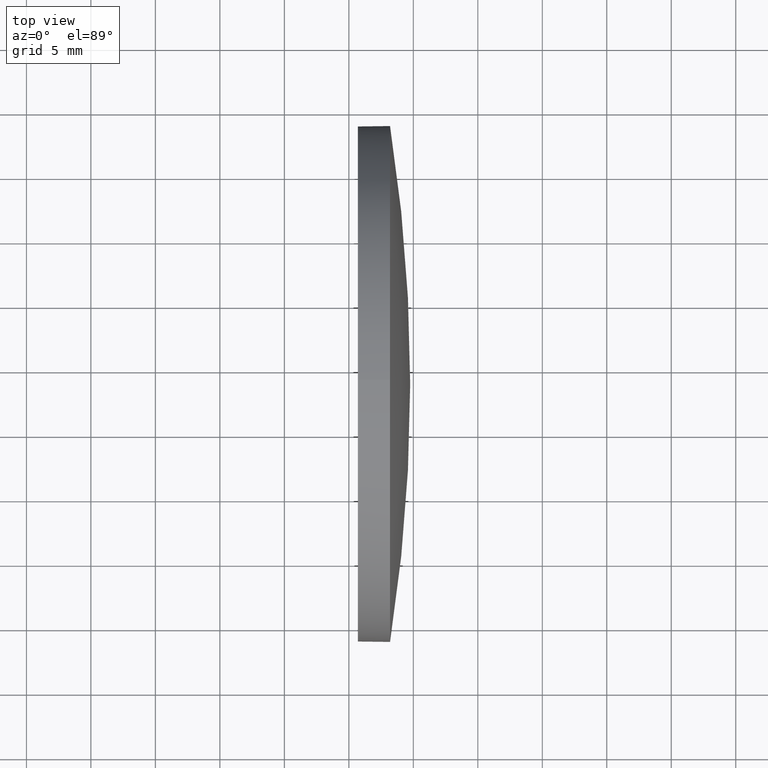
[diagram: clean part render]
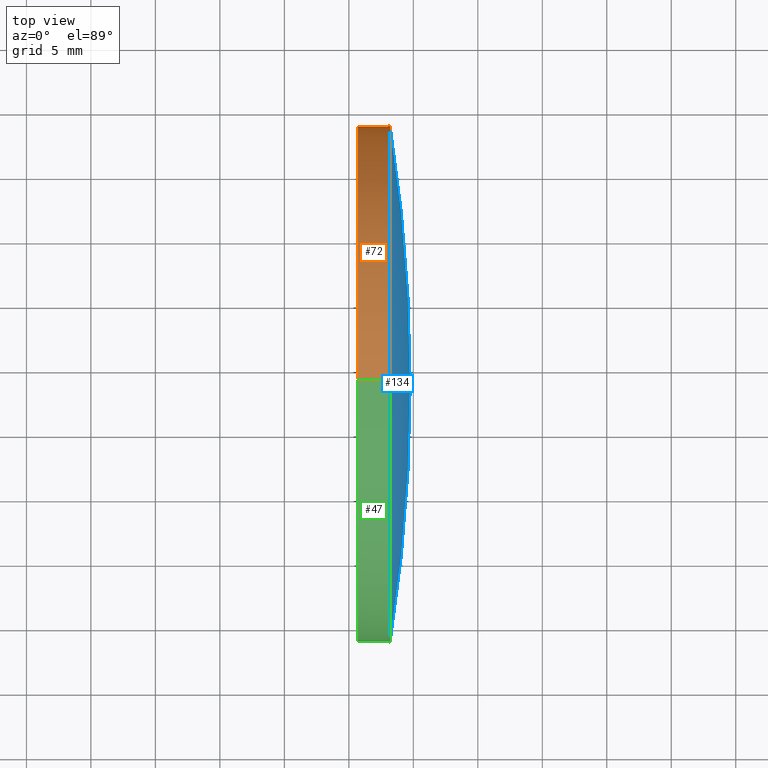
[diagram: same view with three faces highlighted in distinct colors, each labeled with its STEP entity id]
A machine part, top view with three faces highlighted in distinct colors.
Their STEP definitions:

[orange] entity #72 — the highlighted cylindrical surface (partial cylindrical patch) has radius 20 mm, axis along (-1, -0, -0).
#7 = ORIENTED_EDGE ( 'NONE', *, *, #58, .T. ) ;
#10 = CIRCLE ( 'NONE', #114, 20.00000000000000400 ) ;
#18 = FACE_OUTER_BOUND ( 'NONE', #81, .T. ) ;
#24 = DIRECTION ( 'NONE',  ( -1.000000000000000000, -0.0000000000000000000, -0.0000000000000000000 ) ) ;
#27 = CARTESIAN_POINT ( 'NONE',  ( 390.6958291310484700, 28.77305965944879100, 0.0000000000000000000 ) ) ;
#31 = ORIENTED_EDGE ( 'NONE', *, *, #168, .F. ) ;
#35 = DIRECTION ( 'NONE',  ( -1.000000000000000000, -0.0000000000000000000, -0.0000000000000000000 ) ) ;
#41 = DIRECTION ( 'NONE',  ( 0.0000000000000000000, 0.0000000000000000000, 1.000000000000000000 ) ) ;
#45 = VECTOR ( 'NONE', #35, 1000.000000000000000 ) ;
#49 = CIRCLE ( 'NONE', #86, 20.00000000000000400 ) ;
#54 = VERTEX_POINT ( 'NONE', #61 ) ;
#58 = EDGE_CURVE ( 'NONE', #162, #54, #10, .T. ) ;
#59 = VERTEX_POINT ( 'NONE', #93 ) ;
#61 = CARTESIAN_POINT ( 'NONE',  ( 393.1958291310484700, 48.77305965944879800, 0.0000000000000000000 ) ) ;
#64 = CYLINDRICAL_SURFACE ( 'NONE', #77, 20.00000000000000400 ) ;
#65 = DIRECTION ( 'NONE',  ( 0.0000000000000000000, 0.0000000000000000000, 1.000000000000000000 ) ) ;
#72 = ADVANCED_FACE ( 'NONE', ( #18 ), #64, .T. ) ;
#77 = AXIS2_PLACEMENT_3D ( 'NONE', #141, #110, #79 ) ;
#78 = CARTESIAN_POINT ( 'NONE',  ( 393.1958291310484700, 28.77305965944879100, 20.00000000000000400 ) ) ;
#79 = DIRECTION ( 'NONE',  ( 0.0000000000000000000, 0.0000000000000000000, 1.000000000000000000 ) ) ;
#81 = EDGE_LOOP ( 'NONE', ( #111, #89, #102, #31, #7 ) ) ;
#82 = DIRECTION ( 'NONE',  ( -1.000000000000000000, -0.0000000000000000000, -0.0000000000000000000 ) ) ;
#86 = AXIS2_PLACEMENT_3D ( 'NONE', #182, #180, #112 ) ;
#89 = ORIENTED_EDGE ( 'NONE', *, *, #146, .T. ) ;
#91 = VERTEX_POINT ( 'NONE', #125 ) ;
#92 = CIRCLE ( 'NONE', #185, 20.00000000000000400 ) ;
#93 = CARTESIAN_POINT ( 'NONE',  ( 390.6958291310484700, 28.77305965944879100, 20.00000000000000400 ) ) ;
#102 = ORIENTED_EDGE ( 'NONE', *, *, #183, .F. ) ;
#103 = LINE ( 'NONE', #121, #45 ) ;
#108 = CARTESIAN_POINT ( 'NONE',  ( 390.6958291310484700, 28.77305965944879400, -20.00000000000000400 ) ) ;
#109 = CARTESIAN_POINT ( 'NONE',  ( 386.7308755200624500, 28.77305965944879400, -20.00000000000000400 ) ) ;
#110 = DIRECTION ( 'NONE',  ( -1.000000000000000000, -0.0000000000000000000, -0.0000000000000000000 ) ) ;
#111 = ORIENTED_EDGE ( 'NONE', *, *, #129, .T. ) ;
#112 = DIRECTION ( 'NONE',  ( 0.0000000000000000000, 0.0000000000000000000, 1.000000000000000000 ) ) ;
#114 = AXIS2_PLACEMENT_3D ( 'NONE', #177, #82, #65 ) ;
#121 = CARTESIAN_POINT ( 'NONE',  ( 386.7308755200624500, 28.77305965944879100, 20.00000000000000400 ) ) ;
#125 = CARTESIAN_POINT ( 'NONE',  ( 393.1958291310484700, 28.77305965944879400, -20.00000000000000400 ) ) ;
#129 = EDGE_CURVE ( 'NONE', #54, #91, #49, .T. ) ;
#133 = LINE ( 'NONE', #109, #167 ) ;
#141 = CARTESIAN_POINT ( 'NONE',  ( 386.7308755200624500, 28.77305965944879100, 0.0000000000000000000 ) ) ;
#146 = EDGE_CURVE ( 'NONE', #91, #156, #133, .T. ) ;
#152 = DIRECTION ( 'NONE',  ( -1.000000000000000000, -0.0000000000000000000, -0.0000000000000000000 ) ) ;
#156 = VERTEX_POINT ( 'NONE', #108 ) ;
#162 = VERTEX_POINT ( 'NONE', #78 ) ;
#167 = VECTOR ( 'NONE', #24, 1000.000000000000000 ) ;
#168 = EDGE_CURVE ( 'NONE', #162, #59, #103, .T. ) ;
#177 = CARTESIAN_POINT ( 'NONE',  ( 393.1958291310484700, 28.77305965944879100, 0.0000000000000000000 ) ) ;
#180 = DIRECTION ( 'NONE',  ( -1.000000000000000000, -0.0000000000000000000, -0.0000000000000000000 ) ) ;
#182 = CARTESIAN_POINT ( 'NONE',  ( 393.1958291310484700, 28.77305965944879100, 0.0000000000000000000 ) ) ;
#183 = EDGE_CURVE ( 'NONE', #59, #156, #92, .T. ) ;
#185 = AXIS2_PLACEMENT_3D ( 'NONE', #27, #152, #41 ) ;

[blue] entity #134 — the highlighted spherical surface has radius 128.985 mm.
#3 = AXIS2_PLACEMENT_3D ( 'NONE', #123, #30, #113 ) ;
#5 = CARTESIAN_POINT ( 'NONE',  ( 393.1958291310484700, 28.77305965944879100, 0.0000000000000000000 ) ) ;
#6 = CARTESIAN_POINT ( 'NONE',  ( 265.7707009259203200, 28.77305965944876200, 0.0000000000000000000 ) ) ;
#10 = CIRCLE ( 'NONE', #114, 20.00000000000000400 ) ;
#13 = EDGE_CURVE ( 'NONE', #117, #54, #173, .T. ) ;
#17 = ORIENTED_EDGE ( 'NONE', *, *, #26, .F. ) ;
#19 = DIRECTION ( 'NONE',  ( 0.0000000000000000000, 0.0000000000000000000, 1.000000000000000000 ) ) ;
#22 = CARTESIAN_POINT ( 'NONE',  ( 394.7558291310484700, 28.77305965944876900, 0.0000000000000000000 ) ) ;
#25 = CARTESIAN_POINT ( 'NONE',  ( 265.7707009259203200, 28.77305965944876200, 0.0000000000000000000 ) ) ;
#26 = EDGE_CURVE ( 'NONE', #132, #162, #126, .T. ) ;
#30 = DIRECTION ( 'NONE',  ( 0.0000000000000000000, 1.224646799147353200E-016, -1.000000000000000000 ) ) ;
#44 = ORIENTED_EDGE ( 'NONE', *, *, #13, .T. ) ;
#50 = DIRECTION ( 'NONE',  ( -0.0000000000000000000, 0.0000000000000000000, 1.000000000000000000 ) ) ;
#54 = VERTEX_POINT ( 'NONE', #61 ) ;
#58 = EDGE_CURVE ( 'NONE', #162, #54, #10, .T. ) ;
#61 = CARTESIAN_POINT ( 'NONE',  ( 393.1958291310484700, 48.77305965944879800, 0.0000000000000000000 ) ) ;
#65 = DIRECTION ( 'NONE',  ( 0.0000000000000000000, 0.0000000000000000000, 1.000000000000000000 ) ) ;
#78 = CARTESIAN_POINT ( 'NONE',  ( 393.1958291310484700, 28.77305965944879100, 20.00000000000000400 ) ) ;
#82 = DIRECTION ( 'NONE',  ( -1.000000000000000000, -0.0000000000000000000, -0.0000000000000000000 ) ) ;
#87 = ORIENTED_EDGE ( 'NONE', *, *, #58, .F. ) ;
#88 = CIRCLE ( 'NONE', #3, 128.9851282051281500 ) ;
#99 = EDGE_LOOP ( 'NONE', ( #100, #44, #87, #17 ) ) ;
#100 = ORIENTED_EDGE ( 'NONE', *, *, #172, .F. ) ;
#101 = AXIS2_PLACEMENT_3D ( 'NONE', #5, #176, #19 ) ;
#113 = DIRECTION ( 'NONE',  ( 0.0000000000000000000, 1.000000000000000000, 1.224646799147353200E-016 ) ) ;
#114 = AXIS2_PLACEMENT_3D ( 'NONE', #177, #82, #65 ) ;
#117 = VERTEX_POINT ( 'NONE', #22 ) ;
#119 = DIRECTION ( 'NONE',  ( 1.000000000000000000, 0.0000000000000000000, 0.0000000000000000000 ) ) ;
#122 = SPHERICAL_SURFACE ( 'NONE', #149, 128.9851282051281500 ) ;
#123 = CARTESIAN_POINT ( 'NONE',  ( 265.7707009259203200, 28.77305965944876200, 0.0000000000000000000 ) ) ;
#126 = CIRCLE ( 'NONE', #101, 20.00000000000000400 ) ;
#132 = VERTEX_POINT ( 'NONE', #159 ) ;
#134 = ADVANCED_FACE ( 'NONE', ( #157 ), #122, .T. ) ;
#138 = AXIS2_PLACEMENT_3D ( 'NONE', #6, #50, #119 ) ;
#142 = DIRECTION ( 'NONE',  ( -0.0000000000000000000, 0.0000000000000000000, -1.000000000000000000 ) ) ;
#148 = DIRECTION ( 'NONE',  ( 0.0000000000000000000, 1.000000000000000000, 0.0000000000000000000 ) ) ;
#149 = AXIS2_PLACEMENT_3D ( 'NONE', #25, #142, #148 ) ;
#157 = FACE_OUTER_BOUND ( 'NONE', #99, .T. ) ;
#159 = CARTESIAN_POINT ( 'NONE',  ( 393.1958291310484700, 8.773059659448762200, -2.449293598294706100E-015 ) ) ;
#162 = VERTEX_POINT ( 'NONE', #78 ) ;
#172 = EDGE_CURVE ( 'NONE', #117, #132, #88, .T. ) ;
#173 = CIRCLE ( 'NONE', #138, 128.9851282051281500 ) ;
#176 = DIRECTION ( 'NONE',  ( -1.000000000000000000, -0.0000000000000000000, -0.0000000000000000000 ) ) ;
#177 = CARTESIAN_POINT ( 'NONE',  ( 393.1958291310484700, 28.77305965944879100, 0.0000000000000000000 ) ) ;

[green] entity #47 — the highlighted cylindrical surface (partial cylindrical patch) has radius 20 mm, axis along (-1, -0, -0).
#4 = ORIENTED_EDGE ( 'NONE', *, *, #48, .T. ) ;
#5 = CARTESIAN_POINT ( 'NONE',  ( 393.1958291310484700, 28.77305965944879100, 0.0000000000000000000 ) ) ;
#16 = CARTESIAN_POINT ( 'NONE',  ( 393.1958291310484700, 28.77305965944879100, 0.0000000000000000000 ) ) ;
#19 = DIRECTION ( 'NONE',  ( 0.0000000000000000000, 0.0000000000000000000, 1.000000000000000000 ) ) ;
#24 = DIRECTION ( 'NONE',  ( -1.000000000000000000, -0.0000000000000000000, -0.0000000000000000000 ) ) ;
#26 = EDGE_CURVE ( 'NONE', #132, #162, #126, .T. ) ;
#33 = ORIENTED_EDGE ( 'NONE', *, *, #168, .T. ) ;
#34 = CIRCLE ( 'NONE', #186, 20.00000000000000400 ) ;
#35 = DIRECTION ( 'NONE',  ( -1.000000000000000000, -0.0000000000000000000, -0.0000000000000000000 ) ) ;
#37 = DIRECTION ( 'NONE',  ( 0.0000000000000000000, 0.0000000000000000000, 1.000000000000000000 ) ) ;
#45 = VECTOR ( 'NONE', #35, 1000.000000000000000 ) ;
#47 = ADVANCED_FACE ( 'NONE', ( #131 ), #71, .T. ) ;
#48 = EDGE_CURVE ( 'NONE', #91, #132, #34, .T. ) ;
#51 = CARTESIAN_POINT ( 'NONE',  ( 386.7308755200624500, 28.77305965944879100, 0.0000000000000000000 ) ) ;
#59 = VERTEX_POINT ( 'NONE', #93 ) ;
#67 = DIRECTION ( 'NONE',  ( -1.000000000000000000, -0.0000000000000000000, -0.0000000000000000000 ) ) ;
#70 = EDGE_CURVE ( 'NONE', #156, #59, #139, .T. ) ;
#71 = CYLINDRICAL_SURFACE ( 'NONE', #154, 20.00000000000000400 ) ;
#76 = DIRECTION ( 'NONE',  ( -1.000000000000000000, -0.0000000000000000000, -0.0000000000000000000 ) ) ;
#78 = CARTESIAN_POINT ( 'NONE',  ( 393.1958291310484700, 28.77305965944879100, 20.00000000000000400 ) ) ;
#84 = EDGE_LOOP ( 'NONE', ( #166, #4, #96, #33, #120 ) ) ;
#91 = VERTEX_POINT ( 'NONE', #125 ) ;
#93 = CARTESIAN_POINT ( 'NONE',  ( 390.6958291310484700, 28.77305965944879100, 20.00000000000000400 ) ) ;
#96 = ORIENTED_EDGE ( 'NONE', *, *, #26, .T. ) ;
#101 = AXIS2_PLACEMENT_3D ( 'NONE', #5, #176, #19 ) ;
#103 = LINE ( 'NONE', #121, #45 ) ;
#108 = CARTESIAN_POINT ( 'NONE',  ( 390.6958291310484700, 28.77305965944879400, -20.00000000000000400 ) ) ;
#109 = CARTESIAN_POINT ( 'NONE',  ( 386.7308755200624500, 28.77305965944879400, -20.00000000000000400 ) ) ;
#118 = DIRECTION ( 'NONE',  ( -1.000000000000000000, -0.0000000000000000000, -0.0000000000000000000 ) ) ;
#120 = ORIENTED_EDGE ( 'NONE', *, *, #70, .F. ) ;
#121 = CARTESIAN_POINT ( 'NONE',  ( 386.7308755200624500, 28.77305965944879100, 20.00000000000000400 ) ) ;
#124 = DIRECTION ( 'NONE',  ( 0.0000000000000000000, 0.0000000000000000000, 1.000000000000000000 ) ) ;
#125 = CARTESIAN_POINT ( 'NONE',  ( 393.1958291310484700, 28.77305965944879400, -20.00000000000000400 ) ) ;
#126 = CIRCLE ( 'NONE', #101, 20.00000000000000400 ) ;
#131 = FACE_OUTER_BOUND ( 'NONE', #84, .T. ) ;
#132 = VERTEX_POINT ( 'NONE', #159 ) ;
#133 = LINE ( 'NONE', #109, #167 ) ;
#139 = CIRCLE ( 'NONE', #164, 20.00000000000000400 ) ;
#146 = EDGE_CURVE ( 'NONE', #91, #156, #133, .T. ) ;
#154 = AXIS2_PLACEMENT_3D ( 'NONE', #51, #76, #174 ) ;
#156 = VERTEX_POINT ( 'NONE', #108 ) ;
#159 = CARTESIAN_POINT ( 'NONE',  ( 393.1958291310484700, 8.773059659448762200, -2.449293598294706100E-015 ) ) ;
#162 = VERTEX_POINT ( 'NONE', #78 ) ;
#164 = AXIS2_PLACEMENT_3D ( 'NONE', #181, #67, #37 ) ;
#166 = ORIENTED_EDGE ( 'NONE', *, *, #146, .F. ) ;
#167 = VECTOR ( 'NONE', #24, 1000.000000000000000 ) ;
#168 = EDGE_CURVE ( 'NONE', #162, #59, #103, .T. ) ;
#174 = DIRECTION ( 'NONE',  ( 0.0000000000000000000, 0.0000000000000000000, 1.000000000000000000 ) ) ;
#176 = DIRECTION ( 'NONE',  ( -1.000000000000000000, -0.0000000000000000000, -0.0000000000000000000 ) ) ;
#181 = CARTESIAN_POINT ( 'NONE',  ( 390.6958291310484700, 28.77305965944879100, 0.0000000000000000000 ) ) ;
#186 = AXIS2_PLACEMENT_3D ( 'NONE', #16, #118, #124 ) ;